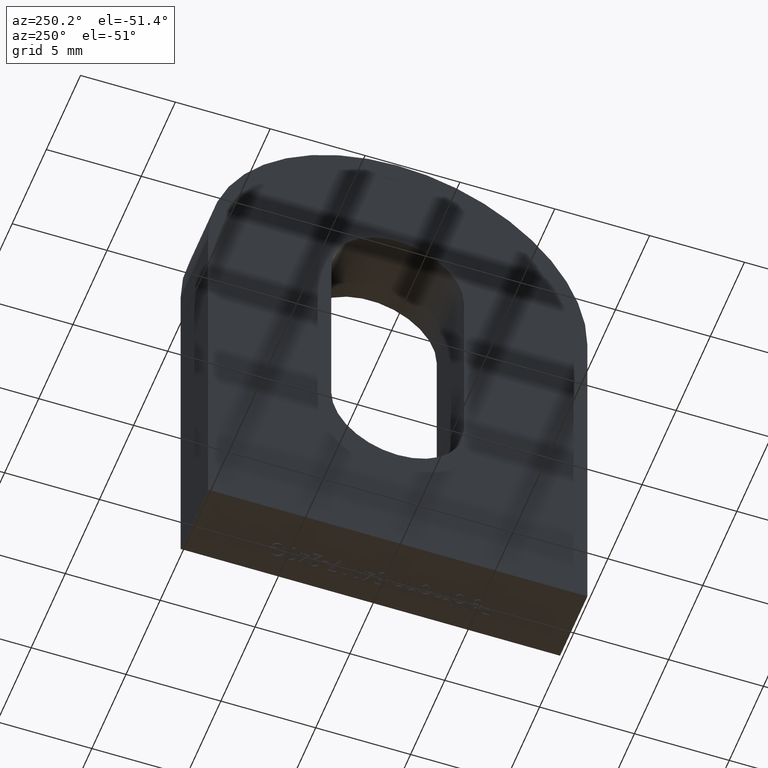
[diagram: clean part render]
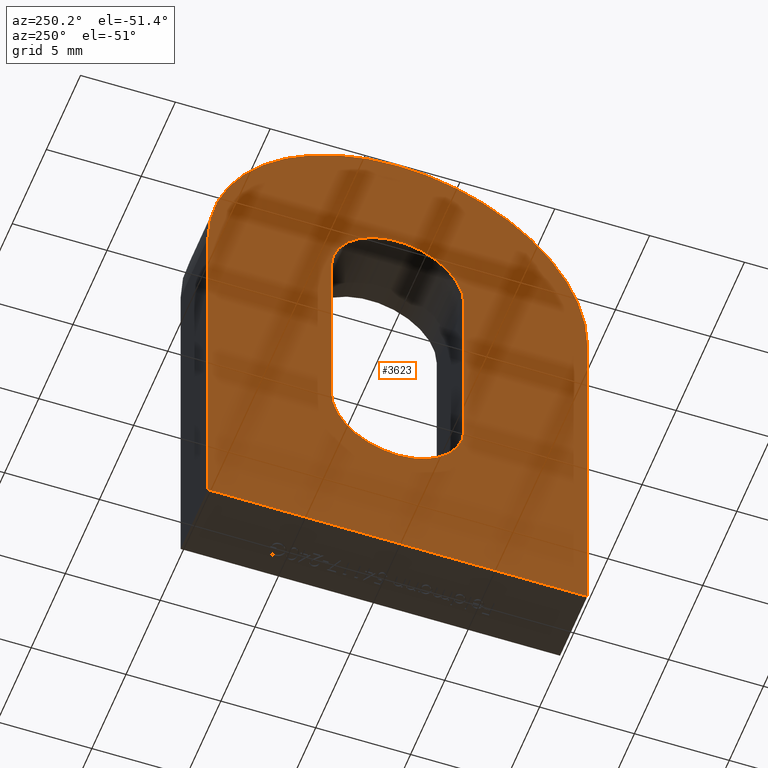
[diagram: same view with one face highlighted and labeled with its STEP entity id]
A machine part, auxiliary view. The second image highlights one B-rep face of the part: STEP entity #3623.
In plain terms, the highlighted planar face has unit normal (-1, -0, 0).
Its self-contained STEP definition (entity closure, byte-faithful):
#40 = CARTESIAN_POINT ( 'NONE',  ( -2.000000000000000000, -3.499999999999999600, 20.49999999999999600 ) ) ;
#113 = EDGE_CURVE ( 'NONE', #8913, #2743, #9626, .T. ) ;
#159 = EDGE_LOOP ( 'NONE', ( #590, #869, #11172, #1945, #1413 ) ) ;
#169 = CARTESIAN_POINT ( 'NONE',  ( -2.000000000000000000, 0.0000000000000000000, 30.00000000000000000 ) ) ;
#292 = EDGE_CURVE ( 'NONE', #8239, #8913, #6234, .T. ) ;
#590 = ORIENTED_EDGE ( 'NONE', *, *, #9063, .T. ) ;
#750 = DIRECTION ( 'NONE',  ( 0.0000000000000000000, 0.0000000000000000000, 1.000000000000000000 ) ) ;
#761 = DIRECTION ( 'NONE',  ( 0.0000000000000000000, -1.000000000000000000, 0.0000000000000000000 ) ) ;
#810 = FACE_OUTER_BOUND ( 'NONE', #159, .T. ) ;
#869 = ORIENTED_EDGE ( 'NONE', *, *, #292, .T. ) ;
#976 = CARTESIAN_POINT ( 'NONE',  ( -2.000000000000000000, -10.00000000000000000, -3.061616997868383000E-015 ) ) ;
#1344 = CARTESIAN_POINT ( 'NONE',  ( -2.000000000000000000, -6.123233995736767300E-016, 6.999999999999995600 ) ) ;
#1403 = VECTOR ( 'NONE', #1721, 1000.000000000000000 ) ;
#1413 = ORIENTED_EDGE ( 'NONE', *, *, #4552, .T. ) ;
#1434 = DIRECTION ( 'NONE',  ( 0.0000000000000000000, -4.336808689942017100E-017, -1.000000000000000000 ) ) ;
#1721 = DIRECTION ( 'NONE',  ( -0.0000000000000000000, 4.336808689942017100E-017, 1.000000000000000000 ) ) ;
#1945 = ORIENTED_EDGE ( 'NONE', *, *, #3500, .T. ) ;
#1998 = VERTEX_POINT ( 'NONE', #4210 ) ;
#2150 = AXIS2_PLACEMENT_3D ( 'NONE', #8851, #10780, #4534 ) ;
#2375 = CARTESIAN_POINT ( 'NONE',  ( -2.000000000000000000, -3.499999999999999600, 20.49999999999999600 ) ) ;
#2500 = AXIS2_PLACEMENT_3D ( 'NONE', #5371, #10850, #750 ) ;
#2545 = ORIENTED_EDGE ( 'NONE', *, *, #10571, .T. ) ;
#2626 = CARTESIAN_POINT ( 'NONE',  ( -2.000000000000000000, -10.00000000000000000, 19.99999999999999600 ) ) ;
#2673 = PLANE ( 'NONE',  #10975 ) ;
#2743 = VERTEX_POINT ( 'NONE', #7854 ) ;
#3129 = ORIENTED_EDGE ( 'NONE', *, *, #8081, .T. ) ;
#3157 = LINE ( 'NONE', #2375, #10090 ) ;
#3288 = CARTESIAN_POINT ( 'NONE',  ( -2.000000000000000000, 0.0000000000000000000, 20.49999999999999600 ) ) ;
#3458 = CIRCLE ( 'NONE', #2150, 3.499999999999999600 ) ;
#3500 = EDGE_CURVE ( 'NONE', #2743, #3890, #10287, .T. ) ;
#3512 = DIRECTION ( 'NONE',  ( 0.0000000000000000000, 0.0000000000000000000, -1.000000000000000000 ) ) ;
#3553 = CARTESIAN_POINT ( 'NONE',  ( -2.000000000000000000, 10.00000000000000000, 19.99999999999999600 ) ) ;
#3623 = ADVANCED_FACE ( 'NONE', ( #9435, #810 ), #2673, .T. ) ;
#3798 = LINE ( 'NONE', #8129, #1403 ) ;
#3890 = VERTEX_POINT ( 'NONE', #6762 ) ;
#4210 = CARTESIAN_POINT ( 'NONE',  ( -2.000000000000000000, 3.499999999999999100, 10.49999999999999500 ) ) ;
#4214 = VECTOR ( 'NONE', #761, 1000.000000000000000 ) ;
#4534 = DIRECTION ( 'NONE',  ( 0.0000000000000000000, 0.0000000000000000000, -1.000000000000000000 ) ) ;
#4541 = DIRECTION ( 'NONE',  ( -1.000000000000000000, -0.0000000000000000000, 0.0000000000000000000 ) ) ;
#4552 = EDGE_CURVE ( 'NONE', #3890, #6637, #11671, .T. ) ;
#4711 = ORIENTED_EDGE ( 'NONE', *, *, #5269, .T. ) ;
#4877 = EDGE_LOOP ( 'NONE', ( #3129, #5563, #4711, #5027, #2545 ) ) ;
#4907 = VECTOR ( 'NONE', #10033, 1000.000000000000000 ) ;
#5027 = ORIENTED_EDGE ( 'NONE', *, *, #7309, .T. ) ;
#5269 = EDGE_CURVE ( 'NONE', #11142, #7128, #3458, .T. ) ;
#5371 = CARTESIAN_POINT ( 'NONE',  ( -2.000000000000000000, 0.0000000000000000000, 19.99999999999999600 ) ) ;
#5395 = VERTEX_POINT ( 'NONE', #6609 ) ;
#5457 = DIRECTION ( 'NONE',  ( 1.000000000000000000, 0.0000000000000000000, 0.0000000000000000000 ) ) ;
#5563 = ORIENTED_EDGE ( 'NONE', *, *, #8310, .T. ) ;
#5814 = AXIS2_PLACEMENT_3D ( 'NONE', #11548, #11588, #7008 ) ;
#6035 = AXIS2_PLACEMENT_3D ( 'NONE', #3288, #9623, #10532 ) ;
#6220 = DIRECTION ( 'NONE',  ( 0.0000000000000000000, 0.0000000000000000000, -1.000000000000000000 ) ) ;
#6234 = CIRCLE ( 'NONE', #2500, 10.00000000000000200 ) ;
#6272 = CIRCLE ( 'NONE', #6035, 3.499999999999999600 ) ;
#6296 = DIRECTION ( 'NONE',  ( 0.0000000000000000000, 0.0000000000000000000, 1.000000000000000000 ) ) ;
#6609 = CARTESIAN_POINT ( 'NONE',  ( -2.000000000000000000, 3.499999999999999600, 20.49999999999999600 ) ) ;
#6637 = VERTEX_POINT ( 'NONE', #2626 ) ;
#6762 = CARTESIAN_POINT ( 'NONE',  ( -2.000000000000000000, -10.00000000000000000, -3.061616997868383000E-015 ) ) ;
#7008 = DIRECTION ( 'NONE',  ( 0.0000000000000000000, 0.0000000000000000000, 1.000000000000000000 ) ) ;
#7128 = VERTEX_POINT ( 'NONE', #1344 ) ;
#7309 = EDGE_CURVE ( 'NONE', #7128, #1998, #10537, .T. ) ;
#7375 = VERTEX_POINT ( 'NONE', #40 ) ;
#7403 = CARTESIAN_POINT ( 'NONE',  ( -2.000000000000000000, -3.500000000000000000, 10.49999999999999500 ) ) ;
#7759 = AXIS2_PLACEMENT_3D ( 'NONE', #8966, #5457, #3512 ) ;
#7854 = CARTESIAN_POINT ( 'NONE',  ( -2.000000000000000000, 10.00000000000000000, -3.061616997868383000E-015 ) ) ;
#8081 = EDGE_CURVE ( 'NONE', #5395, #7375, #6272, .T. ) ;
#8129 = CARTESIAN_POINT ( 'NONE',  ( -2.000000000000000000, 3.499999999999999600, 20.49999999999999600 ) ) ;
#8239 = VERTEX_POINT ( 'NONE', #169 ) ;
#8310 = EDGE_CURVE ( 'NONE', #7375, #11142, #3157, .T. ) ;
#8851 = CARTESIAN_POINT ( 'NONE',  ( -2.000000000000000000, -6.123233995736767300E-016, 10.49999999999999500 ) ) ;
#8913 = VERTEX_POINT ( 'NONE', #10419 ) ;
#8966 = CARTESIAN_POINT ( 'NONE',  ( -2.000000000000000000, -6.123233995736767300E-016, 10.49999999999999500 ) ) ;
#9054 = CARTESIAN_POINT ( 'NONE',  ( -2.000000000000000000, 0.0000000000000000000, 19.99999999999999600 ) ) ;
#9063 = EDGE_CURVE ( 'NONE', #6637, #8239, #9094, .T. ) ;
#9094 = CIRCLE ( 'NONE', #5814, 10.00000000000000200 ) ;
#9435 = FACE_BOUND ( 'NONE', #4877, .T. ) ;
#9623 = DIRECTION ( 'NONE',  ( 1.000000000000000000, 0.0000000000000000000, 0.0000000000000000000 ) ) ;
#9626 = LINE ( 'NONE', #3553, #10475 ) ;
#10033 = DIRECTION ( 'NONE',  ( 0.0000000000000000000, 0.0000000000000000000, 1.000000000000000000 ) ) ;
#10090 = VECTOR ( 'NONE', #1434, 1000.000000000000000 ) ;
#10287 = LINE ( 'NONE', #10633, #4214 ) ;
#10419 = CARTESIAN_POINT ( 'NONE',  ( -2.000000000000000000, 10.00000000000000000, 19.99999999999999600 ) ) ;
#10475 = VECTOR ( 'NONE', #6220, 1000.000000000000000 ) ;
#10532 = DIRECTION ( 'NONE',  ( 0.0000000000000000000, 0.0000000000000000000, -1.000000000000000000 ) ) ;
#10537 = CIRCLE ( 'NONE', #7759, 3.499999999999999600 ) ;
#10571 = EDGE_CURVE ( 'NONE', #1998, #5395, #3798, .T. ) ;
#10633 = CARTESIAN_POINT ( 'NONE',  ( -2.000000000000000000, 10.00000000000000000, -3.061616997868383000E-015 ) ) ;
#10780 = DIRECTION ( 'NONE',  ( 1.000000000000000000, 0.0000000000000000000, 0.0000000000000000000 ) ) ;
#10850 = DIRECTION ( 'NONE',  ( -1.000000000000000000, -0.0000000000000000000, 0.0000000000000000000 ) ) ;
#10975 = AXIS2_PLACEMENT_3D ( 'NONE', #9054, #4541, #6296 ) ;
#11142 = VERTEX_POINT ( 'NONE', #7403 ) ;
#11172 = ORIENTED_EDGE ( 'NONE', *, *, #113, .T. ) ;
#11548 = CARTESIAN_POINT ( 'NONE',  ( -2.000000000000000000, 0.0000000000000000000, 19.99999999999999600 ) ) ;
#11588 = DIRECTION ( 'NONE',  ( -1.000000000000000000, -0.0000000000000000000, 0.0000000000000000000 ) ) ;
#11671 = LINE ( 'NONE', #976, #4907 ) ;